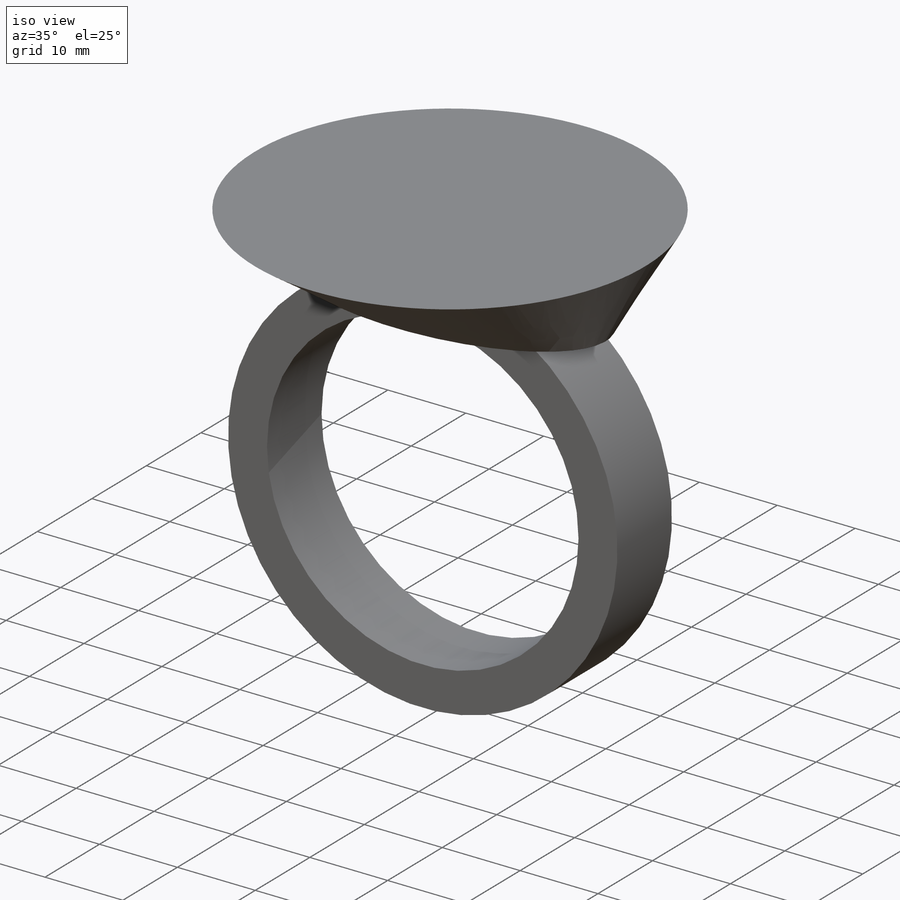
[diagram: iso view]
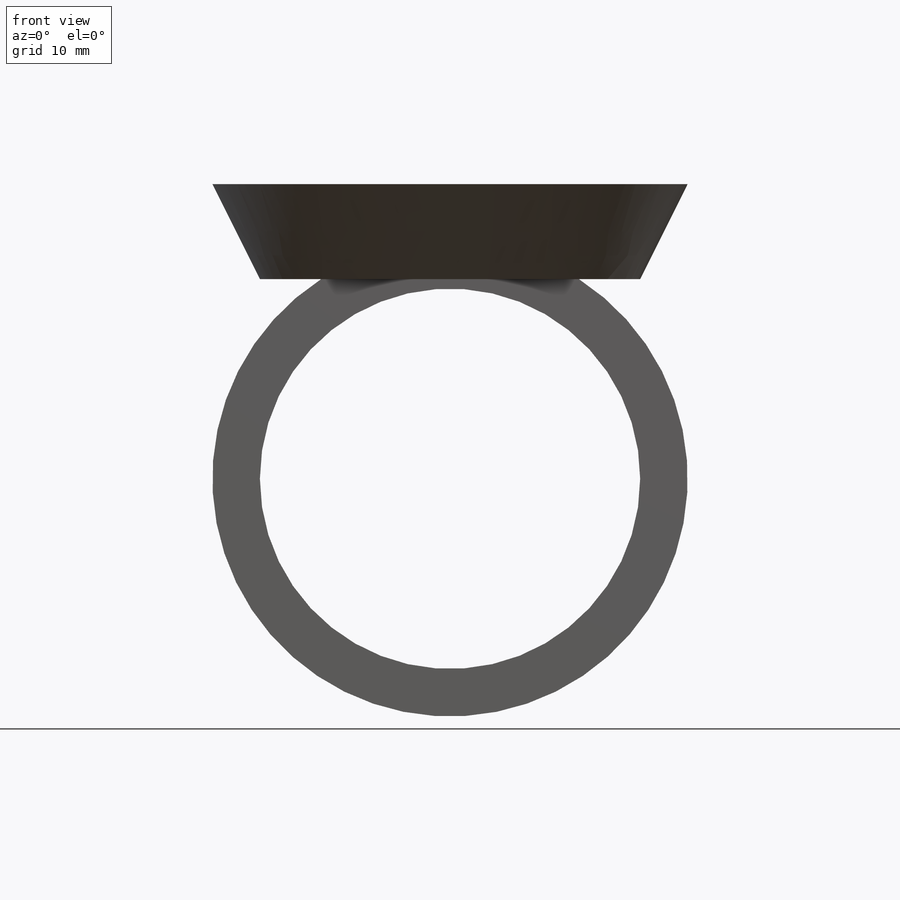
[diagram: front view]
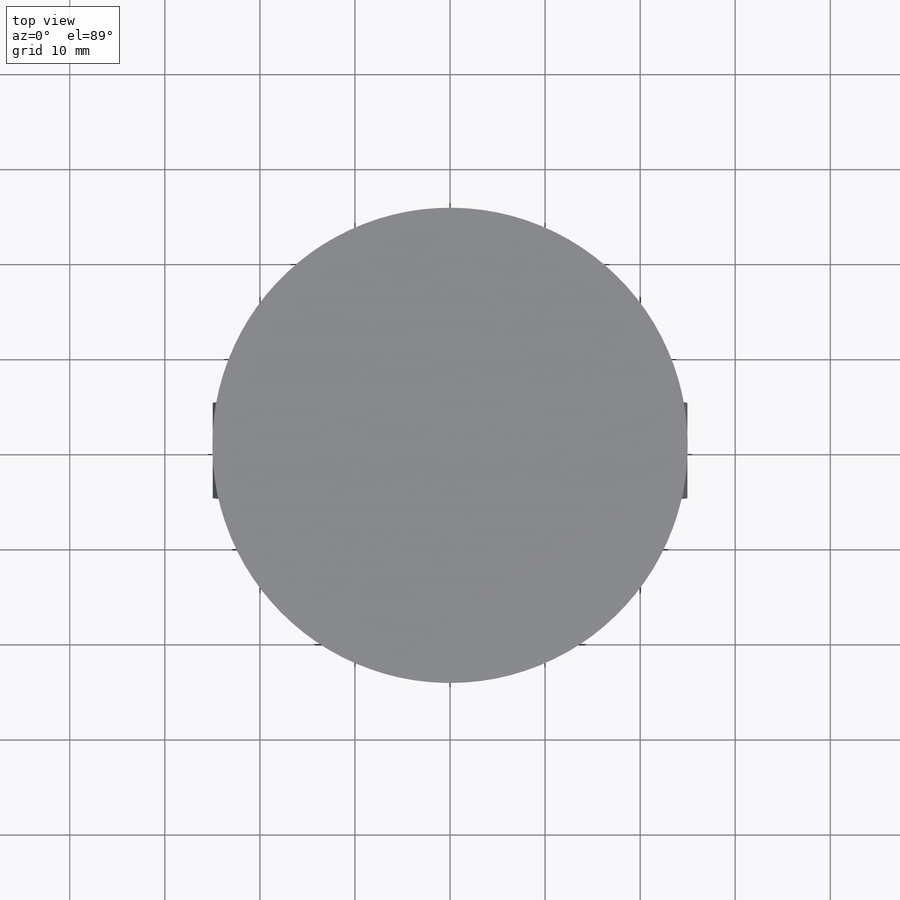
[diagram: top view]
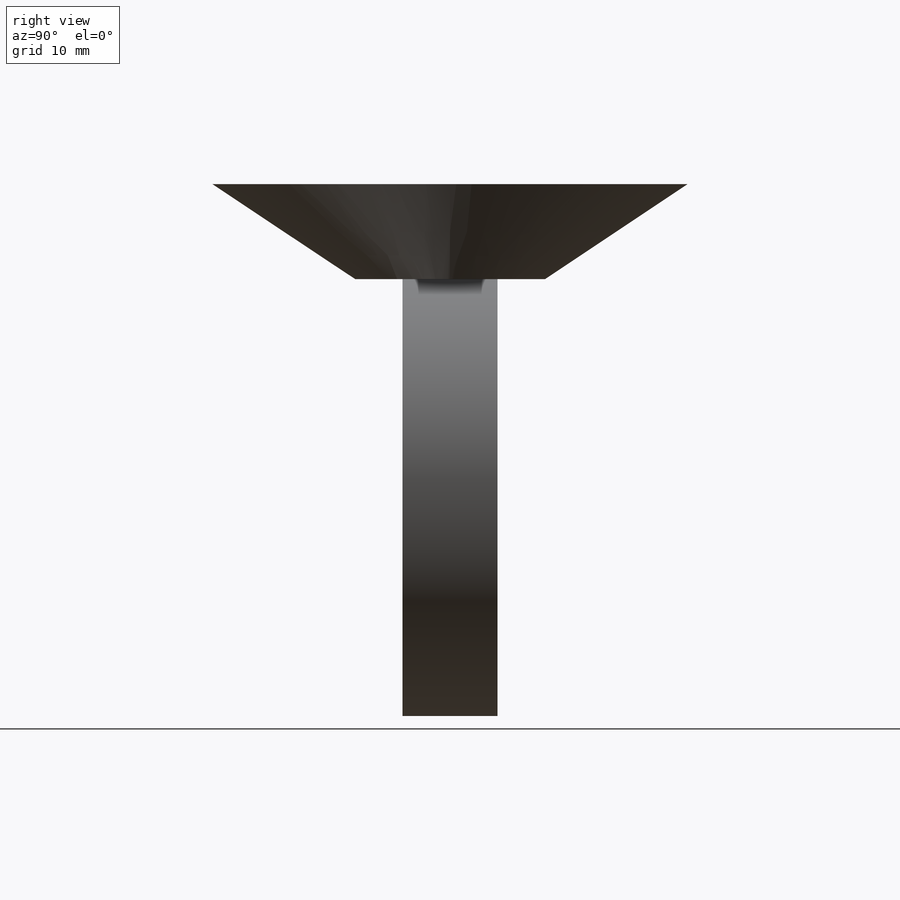
[diagram: right view]
SOLIDWORKS PART (.sldprt)
format: sldprt  version: not decoded by parser v0  size: 283,136 bytes
history: native  units: mm
features: sketch x6, plane x5, material x1, extrude x1 (+8 scaffold rows collapsed)
feature tree (21):
  scaffold x8  (default folders/planes/origin — collapsed)
  material  "Material <nicht festgelegt>"
  plane  "Ebene vorne"
  plane  "Ebene oben"
  plane  "Ebene rechts"
  sketch  "Skizze1"  dims[D1=~18.66236mm]
  plane  "Ebene1"  Offset=21mm
  plane  "Ebene2"  Offset=10mm
  sketch  "Skizze2"  dims[D1=~24.994084mm]
  sketch  "Skizze3"  dims[D1=10.0mm]
  sketch  "Skizze4"
  extrude  "Aufsatz-Linear austragen1"  Depth=10mm
  sketch  "Skizze5"
  sketch  "Skizze9"  dims[D1=120.0deg]
decode coverage: 5 of 7 modeling features carry decoded parameters
note: ~ marks probable driven/reference dimensions
note: suppression state not decoded; provenance and decode notes live in map.json
